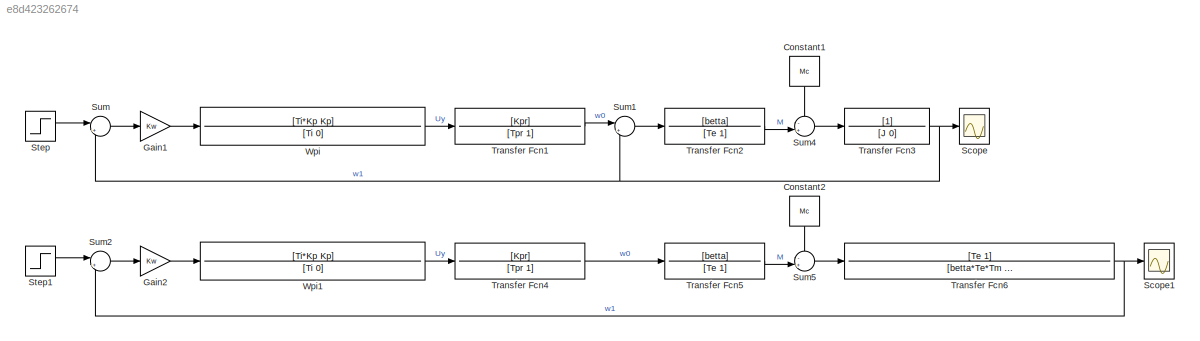
MODEL slx_e8d423262674
KIND model
CONFIG AbsTol = auto
CONFIG EnableMultiTasking = off
CONFIG FixedStep = auto
CONFIG MaxStep = 0.0001
CONFIG MinStep = auto
CONFIG RelTol = 1e-3
CONFIG SampleTimeConstraint = Unconstrained
CONFIG SolverName = VariableStepAuto
CONFIG StartTime = 0.0
CONFIG StopTime = 0.12
BLOCK [Constant] Constant1
  NameLocation = left
  Value = Mc
BLOCK [Constant] Constant2
  NameLocation = left
  Value = Mc
BLOCK [Gain] Gain1
  Gain = Kw
BLOCK [Gain] Gain2
  Gain = Kw
BLOCK [Scope] Scope
  Floating = off
  NumInputPorts = 1
  Ports = [1]
  ScopeSpecificationString = Simulink.scopes.TimeScopeBlockCfg('CurrentConfiguration', extmgr.ConfigurationSet(extmgr.Configuration('Core','General UI',true),extmgr.Configuration('Core','Source UI',true),extmgr.Configuration('Sources','WiredSimulink',true,'DataLoggingVariableName','ScopeData1'),extmgr.Configuration('Visuals','Time Domain',true,'SerializedDisplays',{struct('MinYLimReal','-15.20832','MaxYLimReal','136.87486','Y...<+1494ch>
BLOCK [Scope] Scope1
  Floating = off
  NumInputPorts = 1
  Ports = [1]
  ScopeSpecificationString = Simulink.scopes.TimeScopeBlockCfg('CurrentConfiguration', extmgr.ConfigurationSet(extmgr.Configuration('Core','General UI',true),extmgr.Configuration('Core','Source UI',true),extmgr.Configuration('Sources','WiredSimulink',true,'DataLoggingVariableName','ScopeData1'),extmgr.Configuration('Visuals','Time Domain',true,'SerializedDisplays',{struct('MinYLimReal','-15.20832','MaxYLimReal','136.87486','Y...<+1494ch>
BLOCK [Step] Step
  After = w_zad
  SampleTime = 0
  Time = 0
BLOCK [Step] Step1
  After = w_zad
  SampleTime = 0
  Time = 0
BLOCK [Sum] Sum
  Inputs = |+-
  Ports = [2, 1]
BLOCK [Sum] Sum1
  Inputs = |+-
  Ports = [2, 1]
BLOCK [Sum] Sum2
  Inputs = |+-
  Ports = [2, 1]
BLOCK [Sum] Sum4
  Inputs = -+|
  Ports = [2, 1]
BLOCK [Sum] Sum5
  Inputs = -+|
  Ports = [2, 1]
BLOCK [TransferFcn] Transfer Fcn1
  Denominator = [Tpr 1]
  Numerator = [Kpr]
BLOCK [TransferFcn] Transfer Fcn2
  Denominator = [Te 1]
  Numerator = [betta]
BLOCK [TransferFcn] Transfer Fcn3
  Denominator = [J 0]
BLOCK [TransferFcn] Transfer Fcn4
  Denominator = [Tpr 1]
  Numerator = [Kpr]
BLOCK [TransferFcn] Transfer Fcn5
  Denominator = [Te 1]
  Numerator = [betta]
BLOCK [TransferFcn] Transfer Fcn6
  Denominator = [betta*Te*Tm betta*Tm betta]
  Numerator = [Te 1]
BLOCK [TransferFcn] Wpi
  Denominator = [Ti 0]
  Numerator = [Ti*Kp Kp]
BLOCK [TransferFcn] Wpi1
  Denominator = [Ti 0]
  Numerator = [Ti*Kp Kp]
LINE Constant1:1 -> Sum4:1
LINE Constant2:1 -> Sum5:1
LINE Gain1:1 -> Wpi:1
LINE Gain2:1 -> Wpi1:1
LINE Step1:1 -> Sum2:1
LINE Step:1 -> Sum:1
LINE Sum1:1 -> Transfer Fcn2:1
LINE Sum2:1 -> Gain2:1
LINE Sum4:1 -> Transfer Fcn3:1
LINE Sum5:1 -> Transfer Fcn6:1
LINE Sum:1 -> Gain1:1
LINE Transfer Fcn1:1 -> Sum1:1
LINE Transfer Fcn2:1 -> Sum4:2
NET Transfer Fcn3:1 -> Scope:1, Sum1:2, Sum:2
LINE Transfer Fcn4:1 -> Transfer Fcn5:1
LINE Transfer Fcn5:1 -> Sum5:2
NET Transfer Fcn6:1 -> Scope1:1, Sum2:2
LINE Wpi1:1 -> Transfer Fcn4:1
LINE Wpi:1 -> Transfer Fcn1:1
note: NET lines group one-source signal fan-out (src -> all destinations, sorted); 1:1 wires keep LINE
